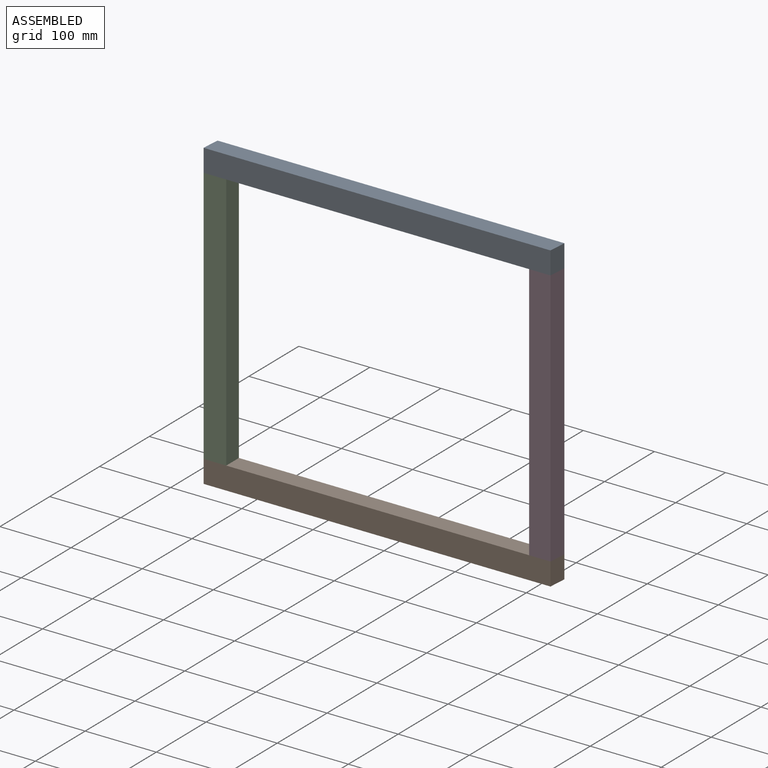
[diagram: assembled view]
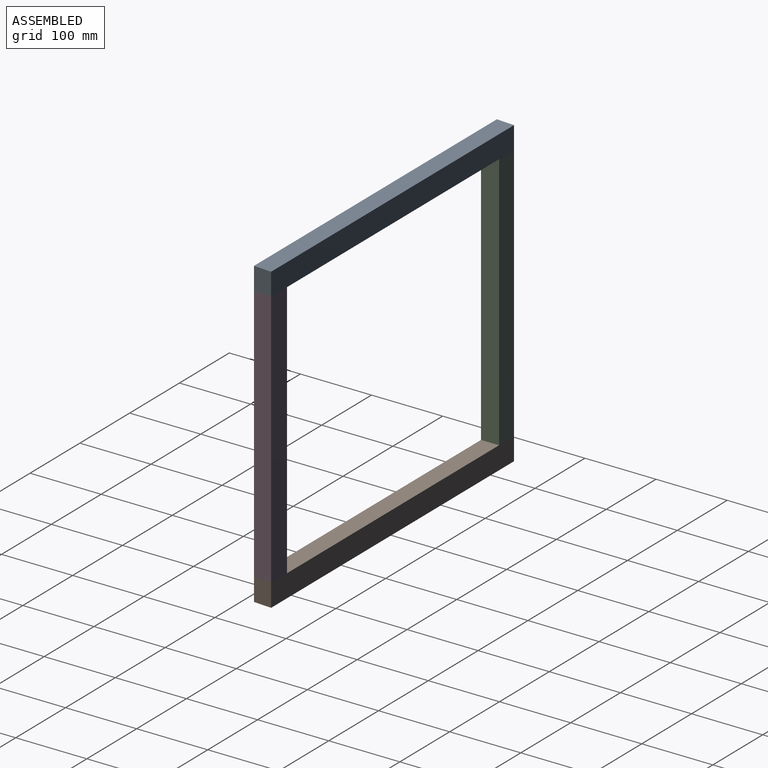
[diagram: assembled view, second angle]
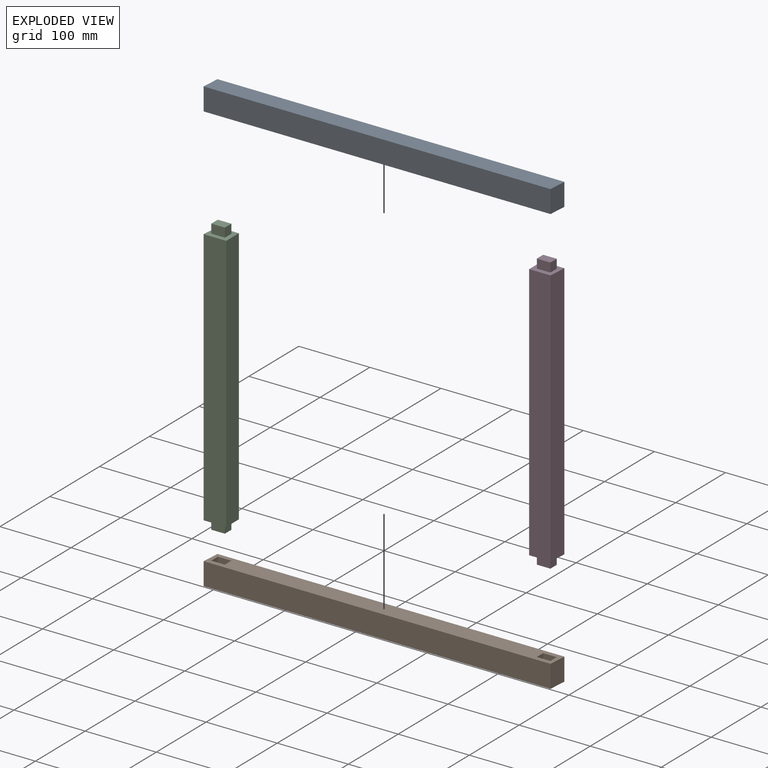
[diagram: exploded view]
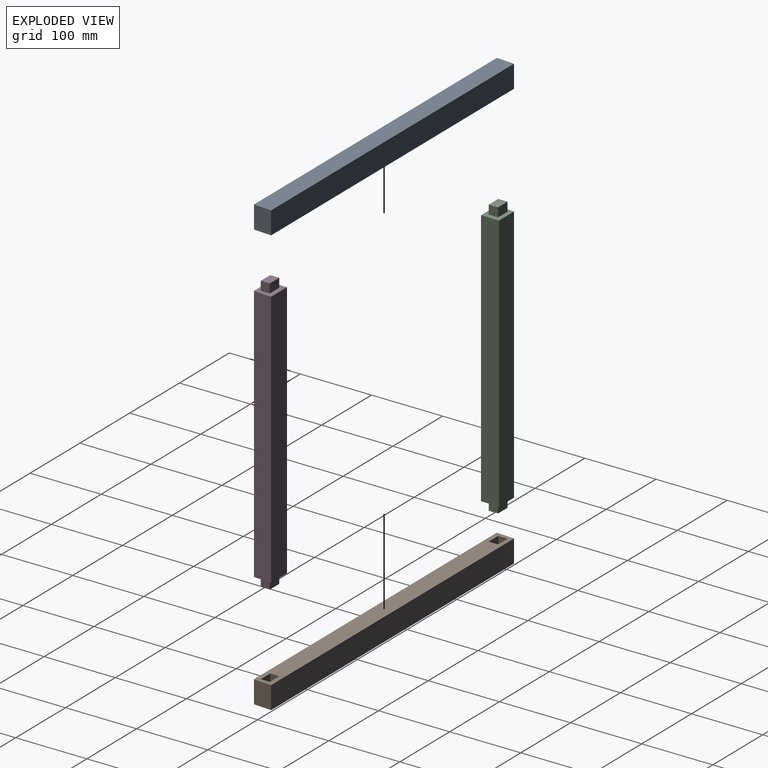
[diagram: exploded view, second angle]
ASSEMBLY  parts=4 mates=3
PART A: 16 faces, bbox 486.6x59.5x31.8 mm
  f0: plane 486.57x59.49mm, normal (0,0,-1), area 11897.6mm2, adj f1,f3,f4,f5,f6,f7,f8,f9
  f1: plane 486.57x34.02mm, normal (-0.07,1,0), area 15486.3mm2, adj f0,f2,f3,f4
  f2: plane 486.57x59.49mm, normal (0,0,1), area 12389mm2, adj f1,f3,f4,f5
  f3: plane 31.75x25.46mm, normal (1,0,0), area 808.4mm2, adj f0,f1,f2,f5
  f4: plane 31.75x25.46mm, normal (-1,0,0), area 808.4mm2, adj f0,f1,f2,f5
  f5: plane 486.57x34.02mm, normal (0.07,-1,0), area 15486.3mm2, adj f0,f2,f3,f4
  f6: plane 19x12.7mm, normal (-0.07,1,0), area 241.9mm2, adj f0,f7,f9,f10
  f7: plane 12.7x12.67mm, normal (-1,-0.07,0), area 161.3mm2, adj f0,f6,f8,f10
  f8: plane 19x12.7mm, normal (0.07,-1,0), area 241.9mm2, adj f0,f7,f9,f10
  f9: plane 12.7x12.67mm, normal (1,0.07,0), area 161.3mm2, adj f0,f6,f8,f10
  f10: plane 19.89x14mm, normal (0,0,-1), area 241.9mm2, adj f6,f7,f8,f9
  f11: plane 19x12.7mm, normal (0.07,-1,0), area 241.9mm2, adj f0,f12,f14,f15
  f12: plane 13.07x12.7mm, normal (1,0.07,0), area 166.3mm2, adj f0,f11,f13,f15
  f13: plane 19x12.7mm, normal (-0.07,1,0), area 241.9mm2, adj f0,f12,f14,f15
  f14: plane 13.07x12.7mm, normal (-1,-0.07,0), area 166.3mm2, adj f0,f11,f13,f15
  f15: plane 19.92x14.39mm, normal (0,0,-1), area 249.5mm2, adj f11,f12,f13,f14
PART B: 16 faces, bbox 486.6x59.5x31.8 mm
  f0: plane 486.57x59.49mm, normal (0,0,1), area 11897.6mm2, adj f2,f3,f4,f5,f6,f7,f8,f9
  f1: plane 486.57x59.49mm, normal (0,0,-1), area 12389mm2, adj f2,f3,f4,f5
  f2: plane 486.57x34.02mm, normal (-0.07,1,0), area 15486.3mm2, adj f0,f1,f3,f4
  f3: plane 31.75x25.46mm, normal (1,0,0), area 808.4mm2, adj f0,f1,f2,f5
  f4: plane 31.75x25.46mm, normal (-1,0,0), area 808.4mm2, adj f0,f1,f2,f5
  f5: plane 486.57x34.02mm, normal (0.07,-1,0), area 15486.3mm2, adj f0,f1,f3,f4
  f6: plane 19x12.7mm, normal (-0.07,1,0), area 241.9mm2, adj f0,f7,f9,f10
  f7: plane 12.7x12.67mm, normal (1,0.07,0), area 161.3mm2, adj f0,f6,f8,f10
  f8: plane 19x12.7mm, normal (0.07,-1,0), area 241.9mm2, adj f0,f7,f9,f10
  f9: plane 12.7x12.67mm, normal (-1,-0.07,0), area 161.3mm2, adj f0,f6,f8,f10
  f10: plane 19.89x14mm, normal (0,0,1), area 241.9mm2, adj f6,f7,f8,f9
  f11: plane 19x12.7mm, normal (0.07,-1,0), area 241.9mm2, adj f0,f12,f14,f15
  f12: plane 13.07x12.7mm, normal (-1,-0.07,0), area 166.3mm2, adj f0,f11,f13,f15
  f13: plane 19x12.7mm, normal (-0.07,1,0), area 241.9mm2, adj f0,f12,f14,f15
  f14: plane 13.07x12.7mm, normal (1,0.07,0), area 166.3mm2, adj f0,f11,f13,f15
  f15: plane 19.92x14.39mm, normal (0,0,1), area 249.5mm2, adj f11,f12,f13,f14
PART C: 16 faces, bbox 31.8x27.6x388.9 mm
  f0: plane 31.75x27.56mm, normal (0,0,-1), area 536.4mm2, adj f1,f2,f3,f4,f11,f12,f13,f14
  f1: plane 363.54x31.75mm, normal (0.07,-1,0), area 11570.5mm2, adj f0,f2,f3,f5
  f2: plane 363.54x25.34mm, normal (1,0.07,0), area 9233.9mm2, adj f0,f1,f4,f5
  f3: plane 363.54x25.46mm, normal (-1,0,0), area 9256.4mm2, adj f0,f1,f4,f5
  f4: plane 363.54x29.98mm, normal (-0.07,1,0), area 10924.8mm2, adj f0,f2,f3,f5
  f5: plane 31.75x27.56mm, normal (0,0,1), area 536.4mm2, adj f1,f2,f3,f4,f6,f7,f8,f9
  f6: plane 19x12.7mm, normal (-0.07,1,0), area 241.9mm2, adj f5,f7,f9,f10
  f7: plane 13.07x12.7mm, normal (-1,-0.07,0), area 166.3mm2, adj f5,f6,f8,f10
  f8: plane 19x12.7mm, normal (0.07,-1,0), area 241.9mm2, adj f5,f7,f9,f10
  f9: plane 13.07x12.7mm, normal (1,0.07,0), area 166.3mm2, adj f5,f6,f8,f10
  f10: plane 19.92x14.39mm, normal (0,0,1), area 249.5mm2, adj f6,f7,f8,f9
  f11: plane 19x12.7mm, normal (-0.07,1,0), area 241.9mm2, adj f0,f12,f14,f15
  f12: plane 13.07x12.7mm, normal (1,0.07,0), area 166.3mm2, adj f0,f11,f13,f15
  f13: plane 19x12.7mm, normal (0.07,-1,0), area 241.9mm2, adj f0,f12,f14,f15
  f14: plane 13.07x12.7mm, normal (-1,-0.07,0), area 166.3mm2, adj f0,f11,f13,f15
  f15: plane 19.92x14.39mm, normal (0,0,-1), area 249.5mm2, adj f11,f12,f13,f14
PART D: 16 faces, bbox 31.8x27.6x388.9 mm
  f0: plane 31.75x27.56mm, normal (0,0,-1), area 543.9mm2, adj f1,f2,f3,f4,f11,f12,f13,f14
  f1: plane 363.54x29.98mm, normal (0.07,-1,0), area 10924.8mm2, adj f0,f2,f3,f5
  f2: plane 363.54x25.46mm, normal (1,0,0), area 9256.4mm2, adj f0,f1,f4,f5
  f3: plane 363.54x25.34mm, normal (-1,-0.07,0), area 9233.9mm2, adj f0,f1,f4,f5
  f4: plane 363.54x31.75mm, normal (-0.07,1,0), area 11570.5mm2, adj f0,f2,f3,f5
  f5: plane 31.75x27.56mm, normal (0,0,1), area 543.9mm2, adj f1,f2,f3,f4,f6,f7,f8,f9
  f6: plane 19x12.7mm, normal (0.07,-1,0), area 241.9mm2, adj f5,f7,f9,f10
  f7: plane 12.7x12.67mm, normal (1,0.07,0), area 161.3mm2, adj f5,f6,f8,f10
  f8: plane 19x12.7mm, normal (-0.07,1,0), area 241.9mm2, adj f5,f7,f9,f10
  f9: plane 12.7x12.67mm, normal (-1,-0.07,0), area 161.3mm2, adj f5,f6,f8,f10
  f10: plane 19.89x14mm, normal (0,0,1), area 241.9mm2, adj f6,f7,f8,f9
  f11: plane 19x12.7mm, normal (0.07,-1,0), area 241.9mm2, adj f0,f12,f14,f15
  f12: plane 12.7x12.67mm, normal (-1,-0.07,0), area 161.3mm2, adj f0,f11,f13,f15
  f13: plane 19x12.7mm, normal (-0.07,1,0), area 241.9mm2, adj f0,f12,f14,f15
  f14: plane 12.7x12.67mm, normal (1,0.07,0), area 161.3mm2, adj f0,f11,f13,f15
  f15: plane 19.89x14mm, normal (0,0,-1), area 241.9mm2, adj f11,f12,f13,f14
PLACE A rot(axis=(0,0,-1),4deg) t=(396.98,-155.93,-183.67)mm
PLACE B rot(axis=(0,0,-1),4deg) t=(396.98,-155.93,-183.67)mm
PLACE C rot(axis=(0,0,-1),4deg) t=(396.98,-155.93,-183.67)mm
PLACE D rot(axis=(0,0,-1),4deg) t=(396.98,-155.93,-183.67)mm
MATE fastened A.f10 <-> D.f10  axis (0,0,-1) through (370.85,-302.84,-370.99)mm
MATE fastened A.f15 <-> C.f10  axis (0,0,-1) through (-86.78,-302.64,-370.99)mm
MATE fastened D.f15 <-> B.f10  axis (0,0,-1) through (370.85,-302.84,-759.93)mm
